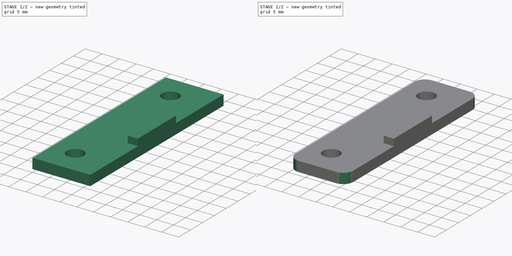
[diagram: build sequence overview — one tinted view per stage of 2, left to right]
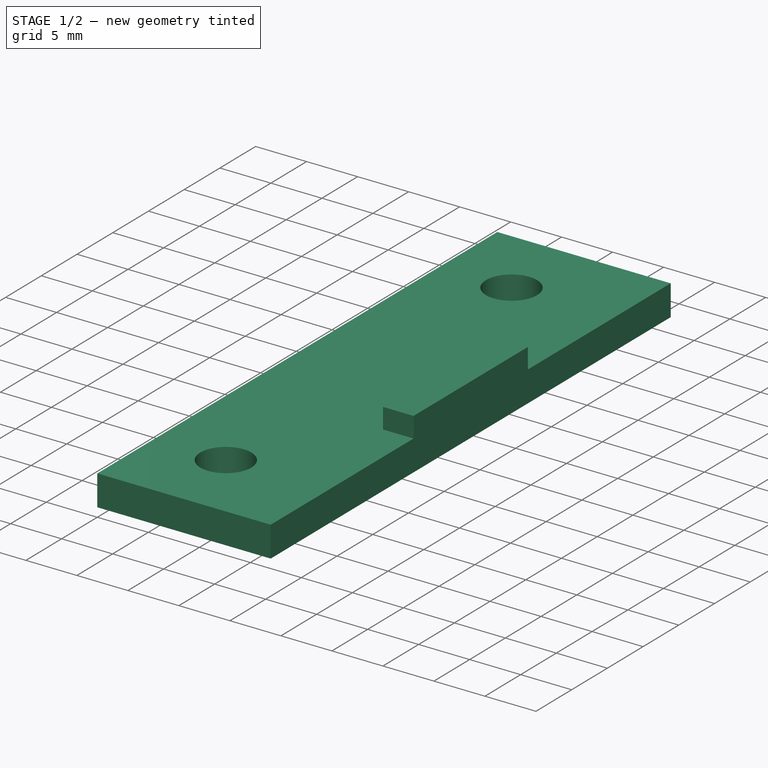
[diagram: stage 1 of 2 — iso view after this stage's code; geometry added in this stage tinted green]
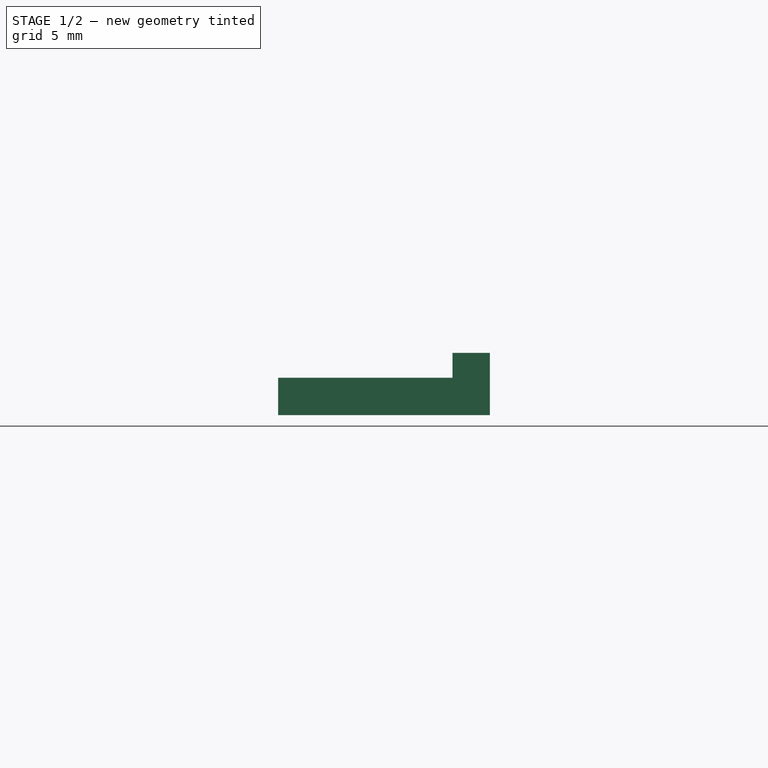
[diagram: stage 1 of 2 — front view after this stage's code; geometry added in this stage tinted green]
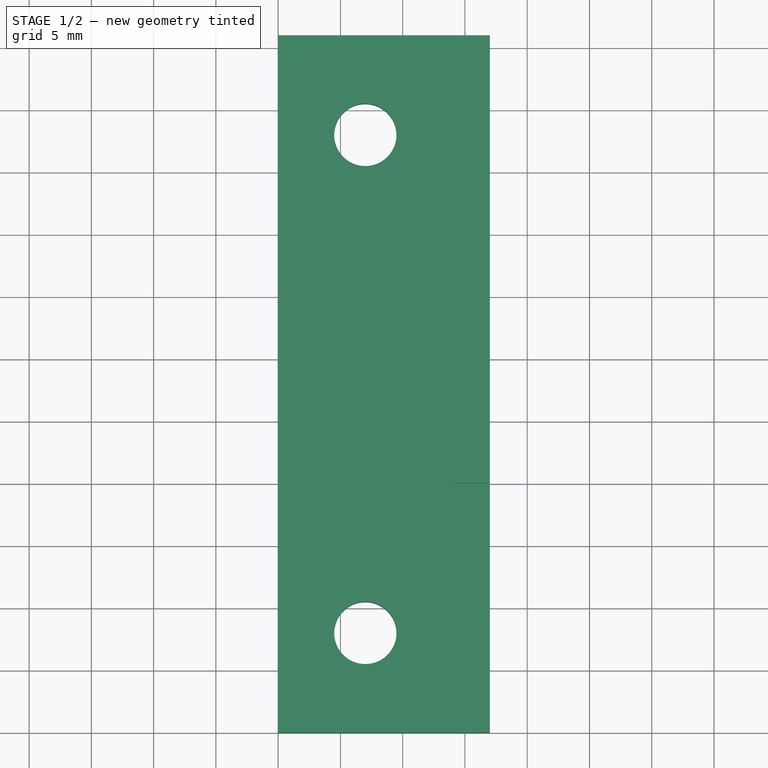
[diagram: stage 1 of 2 — top view after this stage's code; geometry added in this stage tinted green]
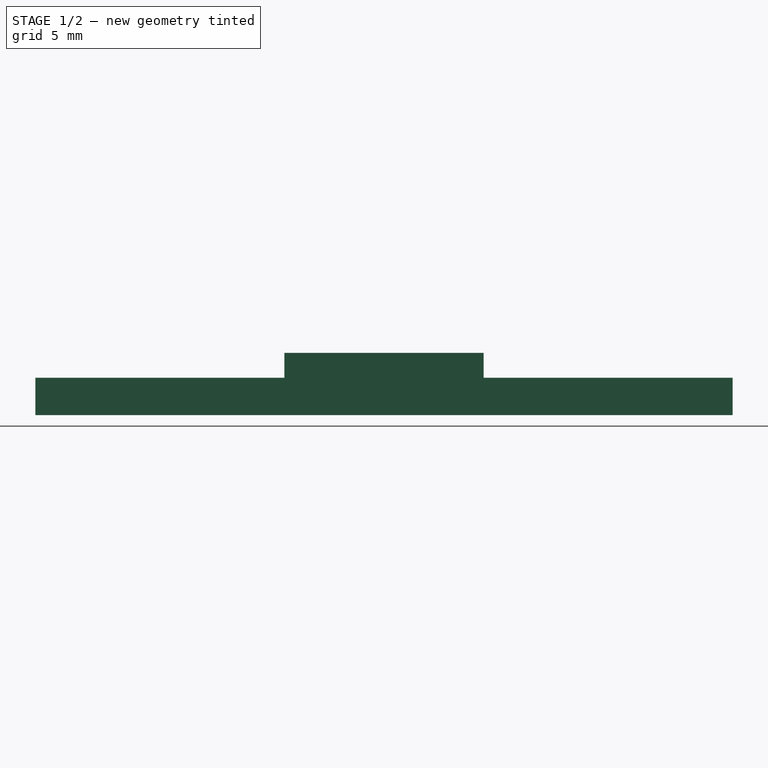
[diagram: stage 1 of 2 — right view after this stage's code; geometry added in this stage tinted green]
FCSTD DOCUMENT  (FreeCAD 0.19R24276 (Git))
Label: Connector_holder
License: All rights reserved
LicenseURL: http://en.wikipedia.org/wiki/All_rights_reserved
objects: Sketcher::SketchObject×2, PartDesign::Pad×2, PartDesign::Fillet×1, PartDesign::Body×1
note: 9 computed .brp shape members not serialized (recipe doc carries the construction recipe); baked Part::Feature solids carry a one-line shape summary decoded from their .brp

FEATURE [Sketcher::SketchObject] Sketch
  FullyConstrained = true
  MapMode = 5
  Support = -> [XY_Plane]
  sketch-geometry (18):
    g0: LineSegment StartX=0 StartY=0 StartZ=0 EndX=14 EndY=0 EndZ=0
    g1: LineSegment StartX=14 StartY=0 StartZ=0 EndX=14 EndY=16 EndZ=0
    g2: LineSegment StartX=14 StartY=16 StartZ=0 EndX=0 EndY=16 EndZ=0
    g3: LineSegment StartX=0 StartY=16 StartZ=0 EndX=0 EndY=0 EndZ=0
    g4: LineSegment StartX=0 StartY=-20 StartZ=0 EndX=14 EndY=-20 EndZ=0
    g5: LineSegment StartX=14 StartY=-20 StartZ=0 EndX=14 EndY=36 EndZ=0
    g6: LineSegment StartX=14 StartY=36 StartZ=0 EndX=0 EndY=36 EndZ=0
    g7: LineSegment StartX=0 StartY=36 StartZ=0 EndX=0 EndY=-20 EndZ=0
    g8: Circle CenterX=7 CenterY=28 CenterZ=0 NormalX=0 NormalY=0 NormalZ=1 AngleXU=0 Radius=2.5
    g9: Circle CenterX=7 CenterY=-12 CenterZ=0 NormalX=0 NormalY=0 NormalZ=1 AngleXU=0 Radius=2.5
    g10: LineSegment StartX=7 StartY=8 StartZ=0 EndX=14 EndY=8 EndZ=0
    g11: LineSegment StartX=7 StartY=-12 StartZ=0 EndX=7 EndY=0 EndZ=0
    g12: LineSegment StartX=14 StartY=36 StartZ=0 EndX=17 EndY=36 EndZ=0
    g13: LineSegment StartX=17 StartY=36 StartZ=0 EndX=17 EndY=-20 EndZ=0
    g14: LineSegment StartX=17 StartY=-20 StartZ=0 EndX=14 EndY=-20 EndZ=0
    g15: LineSegment StartX=14 StartY=-20 StartZ=0 EndX=14 EndY=36 EndZ=0
    g16: LineSegment StartX=0 StartY=36 StartZ=0 EndX=17 EndY=36 EndZ=0
    g17: LineSegment StartX=0 StartY=-20 StartZ=0 EndX=17 EndY=-20 EndZ=0
  constraints (48):
    c: Coincident(g0,g1)
    c: Coincident(g1,g2)
    c: Coincident(g2,g3)
    c: Coincident(g3,g0)
    c: Horizontal(g0)
    c: Horizontal(g2)
    c: Vertical(g1)
    c: Vertical(g3)
    c: Coincident(g0,g-1)
    c: Coincident(g4,g5)
    c: Coincident(g5,g6)
    c: Coincident(g6,g7)
    c: Coincident(g7,g4)
    c: Horizontal(g4)
    c: Horizontal(g6)
    c: Vertical(g5)
    c: Vertical(g7)
    c: PointOnObject(g4,g-2)
    c: DistanceY(g3,g3) = 16
    c: Vertical(g9,g8)
    c: Horizontal(g10)
    c: Symmetric(g1,g0,g10)
    c: Symmetric(g8,g9,g10)
    c: Coincident(g11,g9)
    c: Vertical(g11)
    c: Symmetric(g-1,g0,g11)
    c: DistanceY(g9,g8) = 40
    c: Vertical(g4,g0)
    c: DistanceY(g8,g5) = 8
    c: DistanceY(g4,g5) = 56
    c: DistanceX(g4,g4) = 14
    c: Diameter(g9) = 5
    c: Equal(g9,g8)
    c: Coincident(g12,g13)
    c: Coincident(g13,g14)
    c: Coincident(g14,g15)
    c: Coincident(g15,g12)
    c: Horizontal(g12)
    c: Horizontal(g14)
    c: Vertical(g13)
    c: Vertical(g15)
    c: Coincident(g12,g5)
    c: Horizontal(g14,g4)
    c: DistanceX(g14,g14) = 3
    c: Coincident(g16,g7)
    c: Coincident(g16,g13)
    c: Coincident(g17,g7)
    c: Coincident(g13,g17)
FEATURE [PartDesign::Pad] Pad
  Direction = (1,1,1)
  Length = 3
  Length2 = 100
  Profile = -> Sketch
  Type = 0
FEATURE [Sketcher::SketchObject] Sketch001
  FullyConstrained = true
  MapMode = 5
  Support = -> [XY_Plane]
  sketch-geometry (22):
    g0: LineSegment StartX=0 StartY=0 StartZ=0 EndX=14 EndY=0 EndZ=0
    g1: LineSegment StartX=14 StartY=0 StartZ=0 EndX=14 EndY=16 EndZ=0
    g2: LineSegment StartX=14 StartY=16 StartZ=0 EndX=0 EndY=16 EndZ=0
    g3: LineSegment StartX=0 StartY=16 StartZ=0 EndX=0 EndY=0 EndZ=0
    g4: LineSegment StartX=0 StartY=-20 StartZ=0 EndX=14 EndY=-20 EndZ=0
    g5: LineSegment StartX=14 StartY=-20 StartZ=0 EndX=14 EndY=36 EndZ=0
    g6: LineSegment StartX=14 StartY=36 StartZ=0 EndX=0 EndY=36 EndZ=0
    g7: LineSegment StartX=0 StartY=36 StartZ=0 EndX=0 EndY=-20 EndZ=0
    g8: Circle CenterX=7 CenterY=28 CenterZ=0 NormalX=0 NormalY=0 NormalZ=1 AngleXU=0 Radius=2.5
    g9: Circle CenterX=7 CenterY=-12 CenterZ=0 NormalX=0 NormalY=0 NormalZ=1 AngleXU=0 Radius=2.5
    g10: LineSegment StartX=7 StartY=8 StartZ=0 EndX=14 EndY=8 EndZ=0
    g11: LineSegment StartX=7 StartY=-12 StartZ=0 EndX=7 EndY=0 EndZ=0
    g12: LineSegment StartX=14 StartY=36 StartZ=0 EndX=17 EndY=36 EndZ=0
    g13: LineSegment StartX=17 StartY=36 StartZ=0 EndX=17 EndY=-20 EndZ=0
    g14: LineSegment StartX=17 StartY=-20 StartZ=0 EndX=14 EndY=-20 EndZ=0
    g15: LineSegment StartX=14 StartY=-20 StartZ=0 EndX=14 EndY=36 EndZ=0
    g16: LineSegment StartX=0 StartY=36 StartZ=0 EndX=17 EndY=36 EndZ=0
    g17: LineSegment StartX=0 StartY=-20 StartZ=0 EndX=17 EndY=-20 EndZ=0
    g18: LineSegment StartX=14 StartY=0 StartZ=0 EndX=17 EndY=0 EndZ=0
    g19: LineSegment StartX=17 StartY=0 StartZ=0 EndX=17 EndY=16 EndZ=0
    g20: LineSegment StartX=17 StartY=16 StartZ=0 EndX=14 EndY=16 EndZ=0
    g21: LineSegment StartX=14 StartY=16 StartZ=0 EndX=14 EndY=0 EndZ=0
  constraints (59):
    c: Coincident(g0,g1)
    c: Coincident(g1,g2)
    c: Coincident(g2,g3)
    c: Coincident(g3,g0)
    c: Horizontal(g0)
    c: Horizontal(g2)
    c: Vertical(g1)
    c: Vertical(g3)
    c: Coincident(g0,g-1)
    c: Coincident(g4,g5)
    c: Coincident(g5,g6)
    c: Coincident(g6,g7)
    c: Coincident(g7,g4)
    c: Horizontal(g4)
    c: Horizontal(g6)
    c: Vertical(g5)
    c: Vertical(g7)
    c: PointOnObject(g4,g-2)
    c: DistanceY(g3,g3) = 16
    c: Vertical(g9,g8)
    c: Horizontal(g10)
    c: Symmetric(g1,g0,g10)
    c: Symmetric(g8,g9,g10)
    c: Coincident(g11,g9)
    c: Vertical(g11)
    c: Symmetric(g-1,g0,g11)
    c: DistanceY(g9,g8) = 40
    c: Vertical(g4,g0)
    c: DistanceY(g8,g5) = 8
    c: DistanceY(g4,g5) = 56
    c: DistanceX(g4,g4) = 14
    c: Diameter(g9) = 5
    c: Equal(g9,g8)
    c: Coincident(g12,g13)
    c: Coincident(g13,g14)
    c: Coincident(g14,g15)
    c: Coincident(g15,g12)
    c: Horizontal(g12)
    c: Horizontal(g14)
    c: Vertical(g13)
    c: Vertical(g15)
    c: Coincident(g12,g5)
    c: Horizontal(g14,g4)
    c: DistanceX(g14,g14) = 3
    c: Coincident(g16,g7)
    c: Coincident(g16,g13)
    c: Coincident(g17,g7)
    c: Coincident(g13,g17)
    c: Coincident(g18,g19)
    c: Coincident(g19,g20)
    c: Coincident(g20,g21)
    c: Coincident(g21,g18)
    c: Horizontal(g18)
    c: Horizontal(g20)
    c: Vertical(g19)
    c: Vertical(g21)
    c: Coincident(g18,g0)
    c: Horizontal(g19,g1)
    c: Vertical(g13,g18)
FEATURE [PartDesign::Pad] Pad001
  BaseFeature = -> Pad
  Direction = (1,1,1)
  Length = 5
  Length2 = 100
  Profile = -> Sketch001
  Type = 0
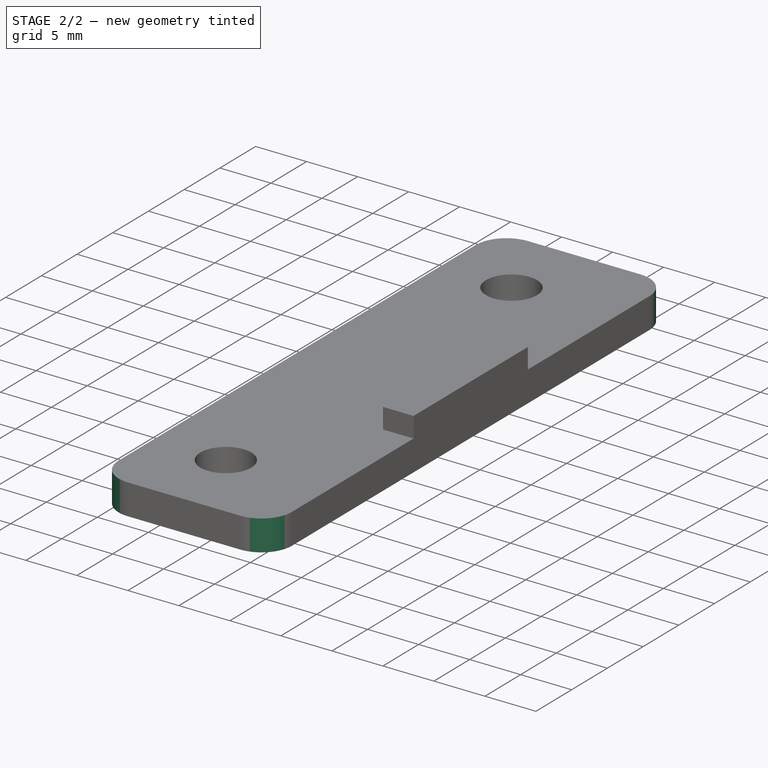
[diagram: stage 2 of 2 — iso view after this stage's code; geometry added in this stage tinted green]
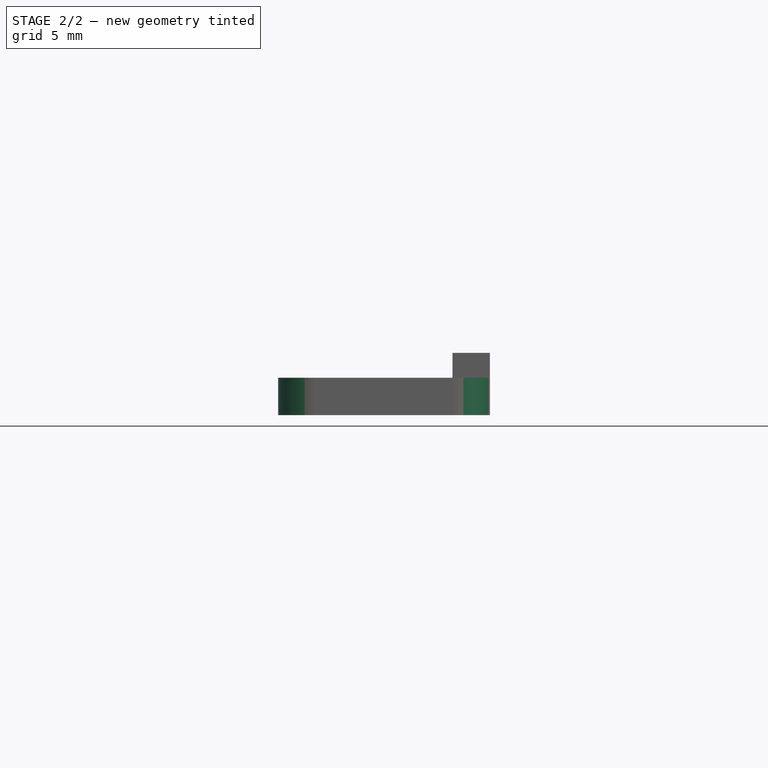
[diagram: stage 2 of 2 — front view after this stage's code; geometry added in this stage tinted green]
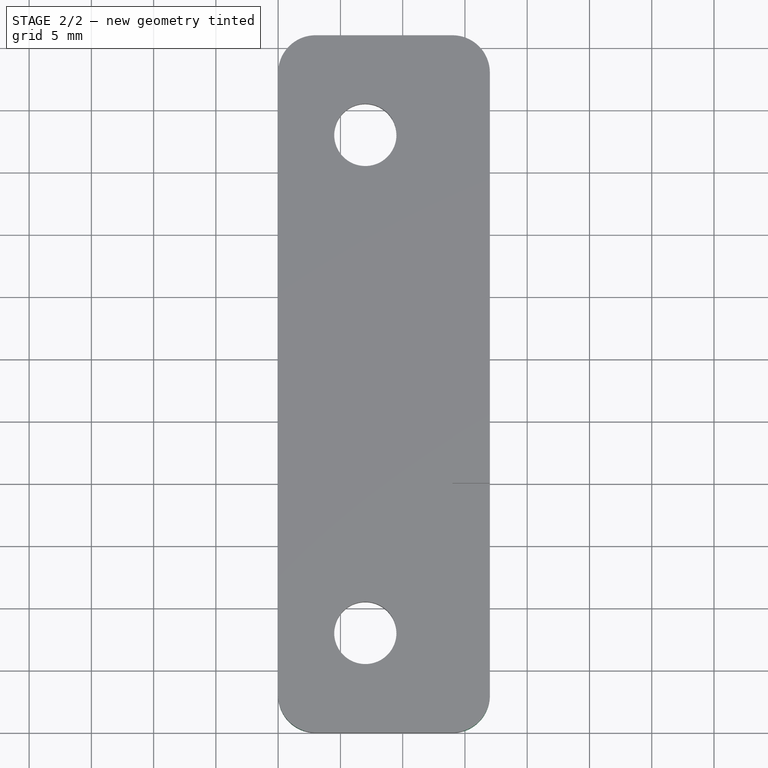
[diagram: stage 2 of 2 — top view after this stage's code; geometry added in this stage tinted green]
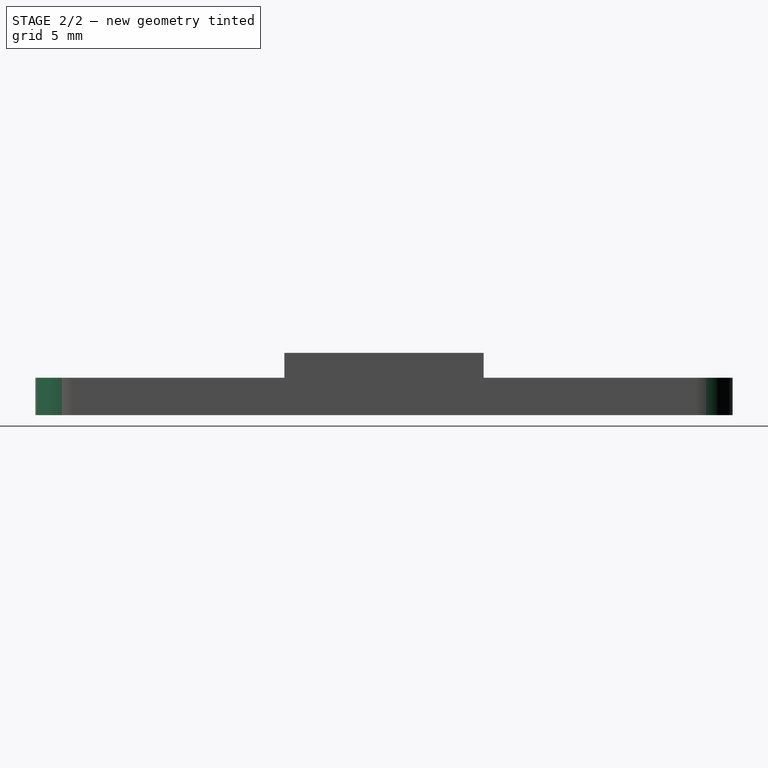
[diagram: stage 2 of 2 — right view after this stage's code; geometry added in this stage tinted green]
FEATURE [PartDesign::Fillet] Fillet
  Base = -> Pad001 [Edge25,Edge5,Edge2,Edge1]
  BaseFeature = -> Pad001
  Radius = 3
  SupportTransform = false
FEATURE [PartDesign::Body] Body
  Group = -> [Sketch,Pad,Sketch001,Pad001,Fillet]
  Origin = -> Origin
  Tip = -> Fillet
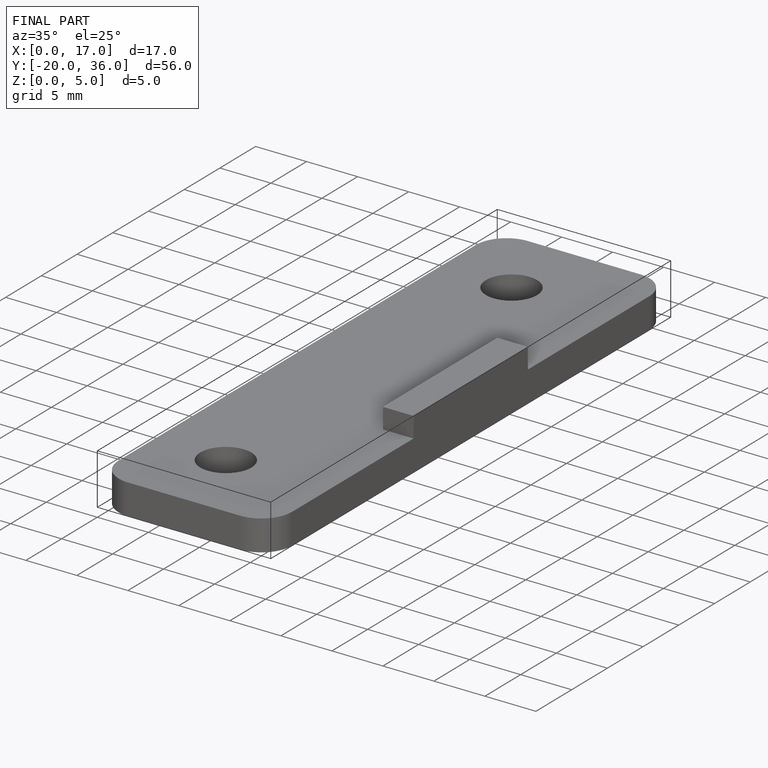
[diagram: finished part — iso view with bounding-box wireframe]
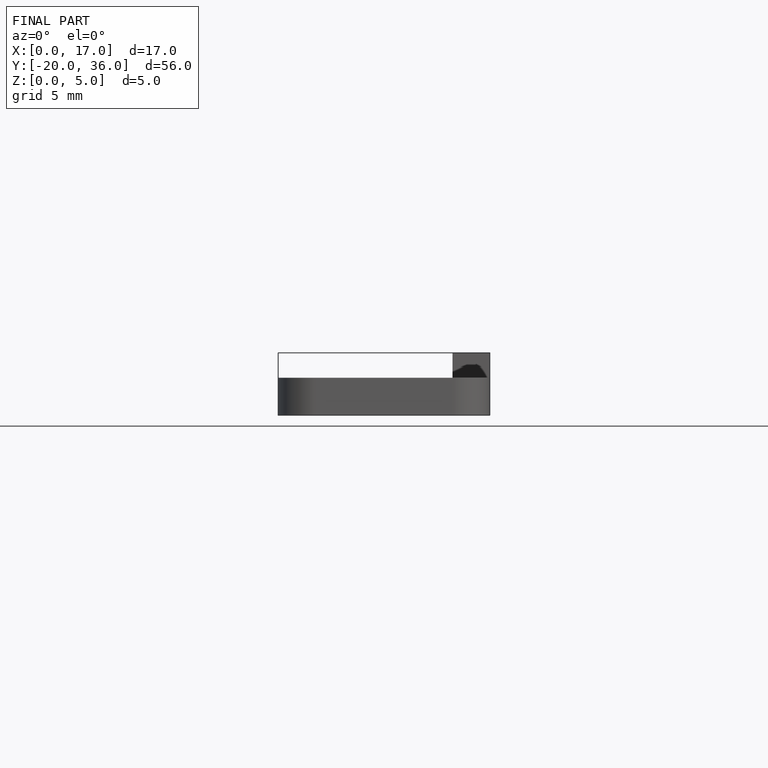
[diagram: finished part — front view with bounding-box wireframe]
